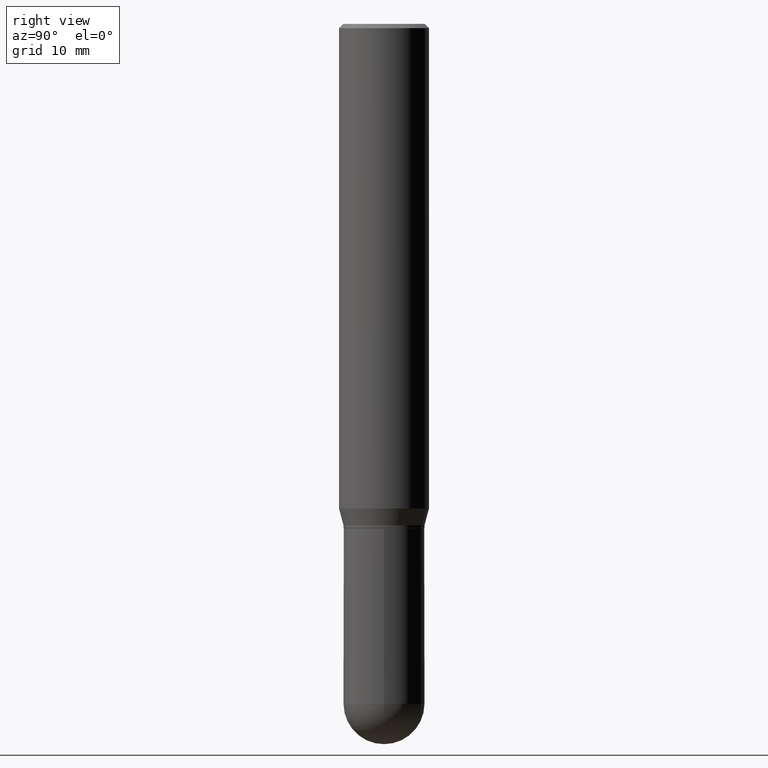
[diagram: clean part render]
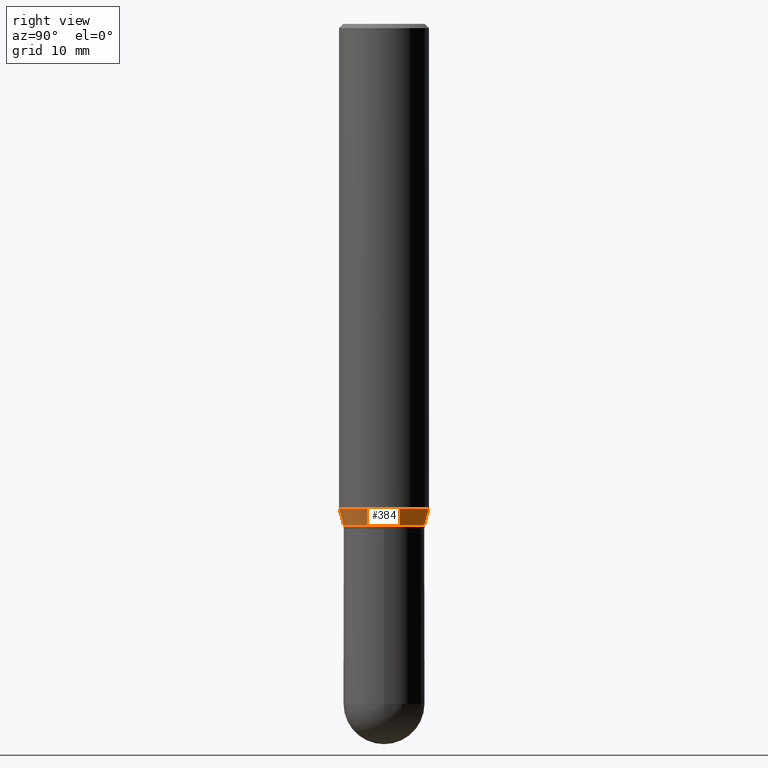
[diagram: same view with one face highlighted and labeled with its STEP entity id]
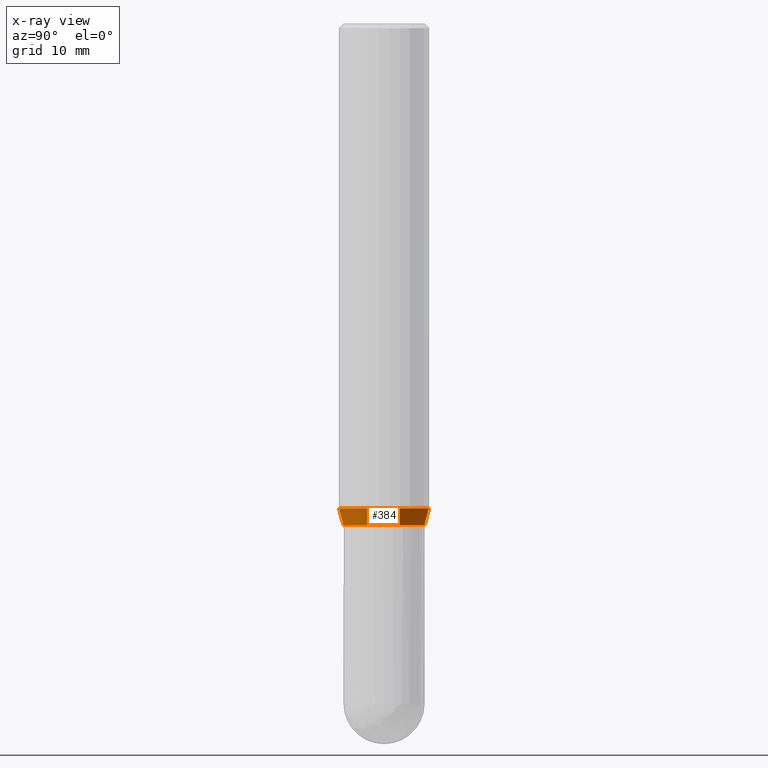
[diagram: x-ray of the same camera — body ghosted, the highlighted face saturated]
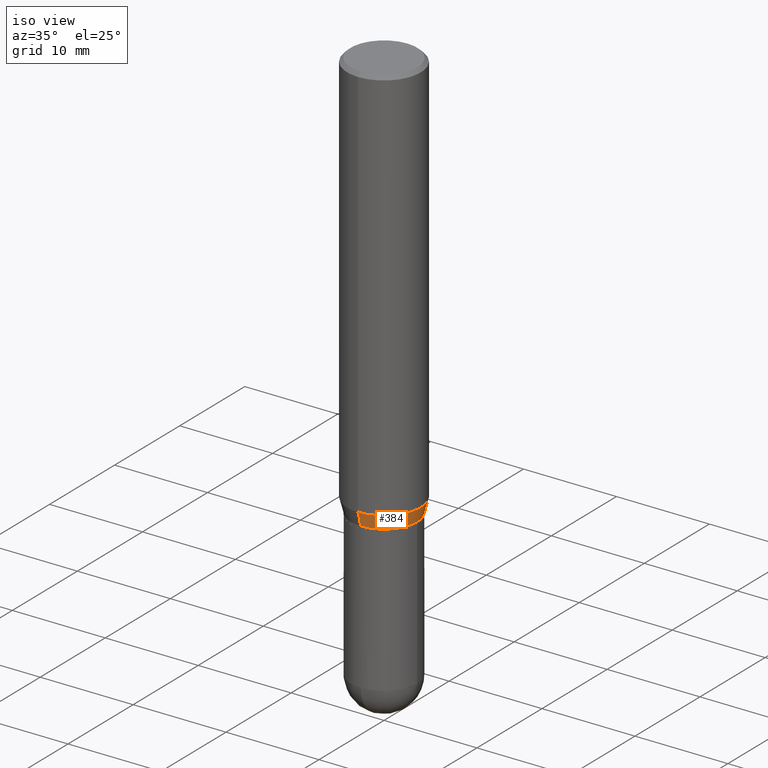
[diagram: same view with one face highlighted and labeled with its STEP entity id]
A machine part, right view. The second image highlights one B-rep face of the part: STEP entity #384.
The next image is the same camera in x-ray: the body ghosted, the highlighted face saturated — about 0% of this face is hidden behind the body in this view.
A second angle (iso view) of the same face is appended — the face is thin or edge-on in the first view.
In plain terms, the highlighted conical surface has half-angle 15 deg.
Its self-contained STEP definition (entity closure, byte-faithful):
#8 = DIRECTION ( 'NONE',  ( -2.445350919548012662E-29, 3.491650159217197762E-15, 1.000000000000000000 ) ) ;
#15 = EDGE_CURVE ( 'NONE', #271, #255, #182, .T. ) ;
#46 = AXIS2_PLACEMENT_3D ( 'NONE', #236, #485, #321 ) ;
#67 = LINE ( 'NONE', #143, #293 ) ;
#82 = DIRECTION ( 'NONE',  ( -2.445350919548012662E-29, 3.491650159217197762E-15, 1.000000000000000000 ) ) ;
#94 = ORIENTED_EDGE ( 'NONE', *, *, #116, .T. ) ;
#116 = EDGE_CURVE ( 'NONE', #271, #224, #273, .T. ) ;
#121 = CARTESIAN_POINT ( 'NONE',  ( 4.254910600013542582E-29, -6.075471277037923405E-15, -1.739999999999999991 ) ) ;
#127 = AXIS2_PLACEMENT_3D ( 'NONE', #121, #82, #436 ) ;
#143 = CARTESIAN_POINT ( 'NONE',  ( 9.990230864787428877E-16, 0.1405999999999938410, -1.740000000000000657 ) ) ;
#165 = ORIENTED_EDGE ( 'NONE', *, *, #475, .F. ) ;
#170 = CARTESIAN_POINT ( 'NONE',  ( 4.254910600013542582E-29, -6.075471277037923405E-15, -1.739999999999999991 ) ) ;
#171 = EDGE_LOOP ( 'NONE', ( #94, #494, #165, #274 ) ) ;
#182 = LINE ( 'NONE', #467, #433 ) ;
#194 = EDGE_CURVE ( 'NONE', #224, #263, #67, .T. ) ;
#218 = DIRECTION ( 'NONE',  ( 1.839019923739597160E-15, 0.2588190451025245142, 0.9659258262890673130 ) ) ;
#220 = CARTESIAN_POINT ( 'NONE',  ( 1.110223024625197561E-15, 0.1562499999999941436, -1.681593404861547514 ) ) ;
#224 = VERTEX_POINT ( 'NONE', #343 ) ;
#236 = CARTESIAN_POINT ( 'NONE',  ( 4.112085978884057268E-29, -5.871535879823409448E-15, -1.681593404861546848 ) ) ;
#243 = CONICAL_SURFACE ( 'NONE', #127, 0.1405999999999999195, 0.2617993877991497964 ) ;
#255 = VERTEX_POINT ( 'NONE', #427 ) ;
#263 = VERTEX_POINT ( 'NONE', #220 ) ;
#271 = VERTEX_POINT ( 'NONE', #415 ) ;
#273 = CIRCLE ( 'NONE', #407, 0.1405999999999999195 ) ;
#274 = ORIENTED_EDGE ( 'NONE', *, *, #15, .F. ) ;
#282 = CIRCLE ( 'NONE', #46, 0.1562500000000000000 ) ;
#293 = VECTOR ( 'NONE', #218, 39.37007874015748143 ) ;
#321 = DIRECTION ( 'NONE',  ( -6.982962677686265133E-15, -1.000000000000000000, 3.496765431890256920E-15 ) ) ;
#343 = CARTESIAN_POINT ( 'NONE',  ( 1.054623055551970126E-15, 0.1405999999999938410, -1.740000000000000657 ) ) ;
#355 = FACE_OUTER_BOUND ( 'NONE', #171, .T. ) ;
#371 = DIRECTION ( 'NONE',  ( -6.982962677686266711E-15, -1.000000000000000000, 3.885985766236507752E-15 ) ) ;
#384 = ADVANCED_FACE ( 'NONE', ( #355 ), #243, .T. ) ;
#407 = AXIS2_PLACEMENT_3D ( 'NONE', #170, #8, #371 ) ;
#415 = CARTESIAN_POINT ( 'NONE',  ( -9.818045524826459157E-16, -0.1406000000000059980, -1.739999999999999547 ) ) ;
#427 = CARTESIAN_POINT ( 'NONE',  ( -1.091087918388437956E-15, -0.1562500000000058842, -1.681593404861546404 ) ) ;
#433 = VECTOR ( 'NONE', #497, 39.37007874015748143 ) ;
#436 = DIRECTION ( 'NONE',  ( -6.982962677686266711E-15, -1.000000000000000000, 3.885985766236507752E-15 ) ) ;
#467 = CARTESIAN_POINT ( 'NONE',  ( -9.818045524826459157E-16, -0.1406000000000059980, -1.739999999999999547 ) ) ;
#475 = EDGE_CURVE ( 'NONE', #255, #263, #282, .T. ) ;
#485 = DIRECTION ( 'NONE',  ( -2.445350919548012662E-29, 3.491650159217197762E-15, 1.000000000000000000 ) ) ;
#494 = ORIENTED_EDGE ( 'NONE', *, *, #194, .T. ) ;
#497 = DIRECTION ( 'NONE',  ( -1.807323732225326984E-15, -0.2588190451025177419, 0.9659258262890690894 ) ) ;